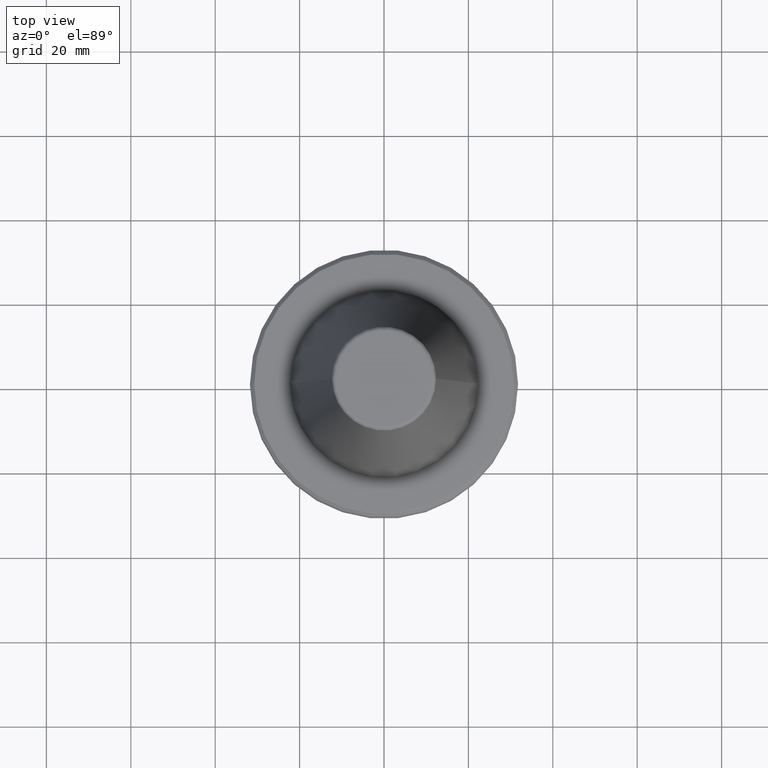
[diagram: clean part render]
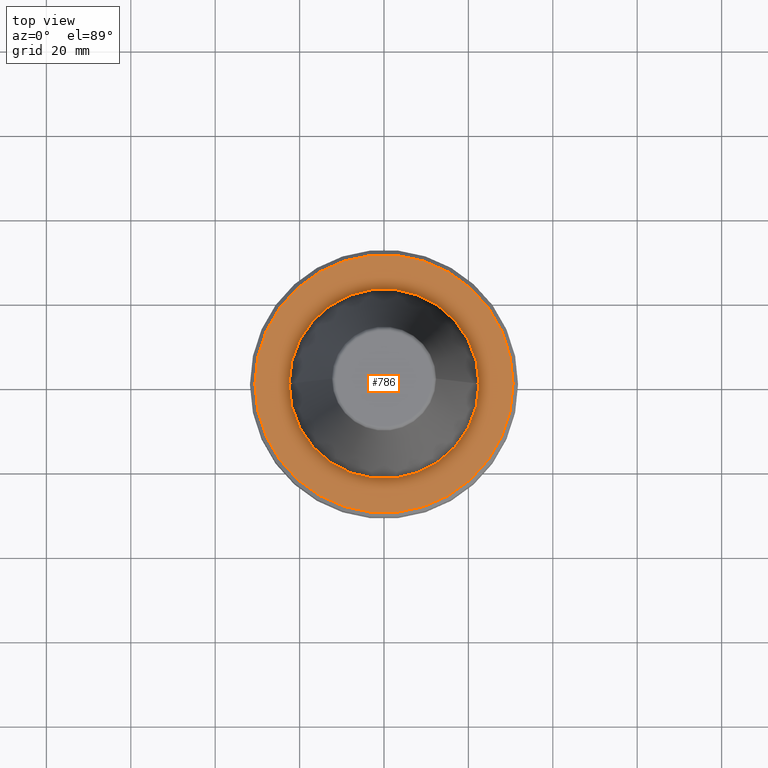
[diagram: same view with one face highlighted and labeled with its STEP entity id]
A machine part, top view. The second image highlights one B-rep face of the part: STEP entity #786.
In plain terms, the highlighted planar face has unit normal (0, -0, 1).
Its self-contained STEP definition (entity closure, byte-faithful):
#19 = VERTEX_POINT ( 'NONE', #735 ) ;
#43 = DIRECTION ( 'NONE',  ( -0.0000000000000000000, -0.0000000000000000000, 1.000000000000000000 ) ) ;
#88 = VERTEX_POINT ( 'NONE', #1094 ) ;
#89 = CARTESIAN_POINT ( 'NONE',  ( 30.58431457505076200, 0.0000000000000000000, -3.199999999999994400 ) ) ;
#93 = AXIS2_PLACEMENT_3D ( 'NONE', #1134, #1232, #563 ) ;
#101 = DIRECTION ( 'NONE',  ( 1.000000000000000000, 0.0000000000000000000, 0.0000000000000000000 ) ) ;
#124 = CARTESIAN_POINT ( 'NONE',  ( 0.0000000000000000000, 0.0000000000000000000, -3.199999999999994400 ) ) ;
#133 = EDGE_LOOP ( 'NONE', ( #699, #931 ) ) ;
#202 = DIRECTION ( 'NONE',  ( 0.0000000000000000000, -0.0000000000000000000, 1.000000000000000000 ) ) ;
#210 = AXIS2_PLACEMENT_3D ( 'NONE', #303, #202, #228 ) ;
#212 = DIRECTION ( 'NONE',  ( 1.000000000000000000, 0.0000000000000000000, 0.0000000000000000000 ) ) ;
#228 = DIRECTION ( 'NONE',  ( 1.000000000000000000, 0.0000000000000000000, 0.0000000000000000000 ) ) ;
#254 = EDGE_CURVE ( 'NONE', #590, #88, #989, .T. ) ;
#301 = CARTESIAN_POINT ( 'NONE',  ( 0.0000000000000000000, 0.0000000000000000000, -3.199999999999994400 ) ) ;
#303 = CARTESIAN_POINT ( 'NONE',  ( 0.0000000000000000000, 0.0000000000000000000, -3.200000000000000200 ) ) ;
#352 = CIRCLE ( 'NONE', #93, 22.50000000000000000 ) ;
#383 = EDGE_CURVE ( 'NONE', #1102, #19, #352, .T. ) ;
#473 = AXIS2_PLACEMENT_3D ( 'NONE', #124, #869, #212 ) ;
#483 = FACE_OUTER_BOUND ( 'NONE', #133, .T. ) ;
#563 = DIRECTION ( 'NONE',  ( 1.000000000000000000, 0.0000000000000000000, 0.0000000000000000000 ) ) ;
#590 = VERTEX_POINT ( 'NONE', #89 ) ;
#618 = CARTESIAN_POINT ( 'NONE',  ( 0.0000000000000000000, 0.0000000000000000000, -3.199999999999994400 ) ) ;
#623 = CARTESIAN_POINT ( 'NONE',  ( -22.50000000000000000, 2.755455298081544800E-015, -3.199999999999996600 ) ) ;
#676 = CIRCLE ( 'NONE', #1157, 30.58431457505076200 ) ;
#680 = PLANE ( 'NONE',  #210 ) ;
#699 = ORIENTED_EDGE ( 'NONE', *, *, #254, .T. ) ;
#713 = DIRECTION ( 'NONE',  ( 1.000000000000000000, 0.0000000000000000000, 0.0000000000000000000 ) ) ;
#725 = FACE_BOUND ( 'NONE', #857, .T. ) ;
#735 = CARTESIAN_POINT ( 'NONE',  ( 22.50000000000000000, 0.0000000000000000000, -3.199999999999996600 ) ) ;
#763 = ORIENTED_EDGE ( 'NONE', *, *, #383, .F. ) ;
#770 = DIRECTION ( 'NONE',  ( -0.0000000000000000000, -0.0000000000000000000, 1.000000000000000000 ) ) ;
#786 = ADVANCED_FACE ( 'NONE', ( #483, #725 ), #680, .T. ) ;
#857 = EDGE_LOOP ( 'NONE', ( #1213, #763 ) ) ;
#863 = EDGE_CURVE ( 'NONE', #19, #1102, #1174, .T. ) ;
#869 = DIRECTION ( 'NONE',  ( -0.0000000000000000000, -0.0000000000000000000, 1.000000000000000000 ) ) ;
#931 = ORIENTED_EDGE ( 'NONE', *, *, #1007, .T. ) ;
#989 = CIRCLE ( 'NONE', #473, 30.58431457505076200 ) ;
#1007 = EDGE_CURVE ( 'NONE', #88, #590, #676, .T. ) ;
#1094 = CARTESIAN_POINT ( 'NONE',  ( -30.58431457505076200, 3.762817415969875600E-015, -3.199999999999994400 ) ) ;
#1102 = VERTEX_POINT ( 'NONE', #623 ) ;
#1128 = AXIS2_PLACEMENT_3D ( 'NONE', #301, #770, #101 ) ;
#1134 = CARTESIAN_POINT ( 'NONE',  ( 0.0000000000000000000, 0.0000000000000000000, -3.199999999999994400 ) ) ;
#1157 = AXIS2_PLACEMENT_3D ( 'NONE', #618, #43, #713 ) ;
#1174 = CIRCLE ( 'NONE', #1128, 22.50000000000000000 ) ;
#1213 = ORIENTED_EDGE ( 'NONE', *, *, #863, .F. ) ;
#1232 = DIRECTION ( 'NONE',  ( -0.0000000000000000000, -0.0000000000000000000, 1.000000000000000000 ) ) ;